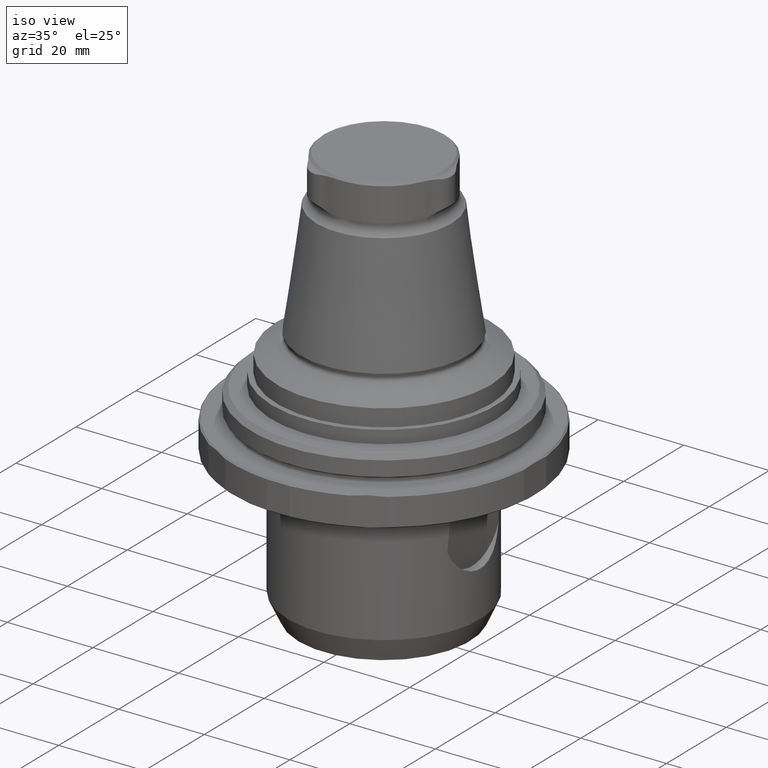
[diagram: clean part render]
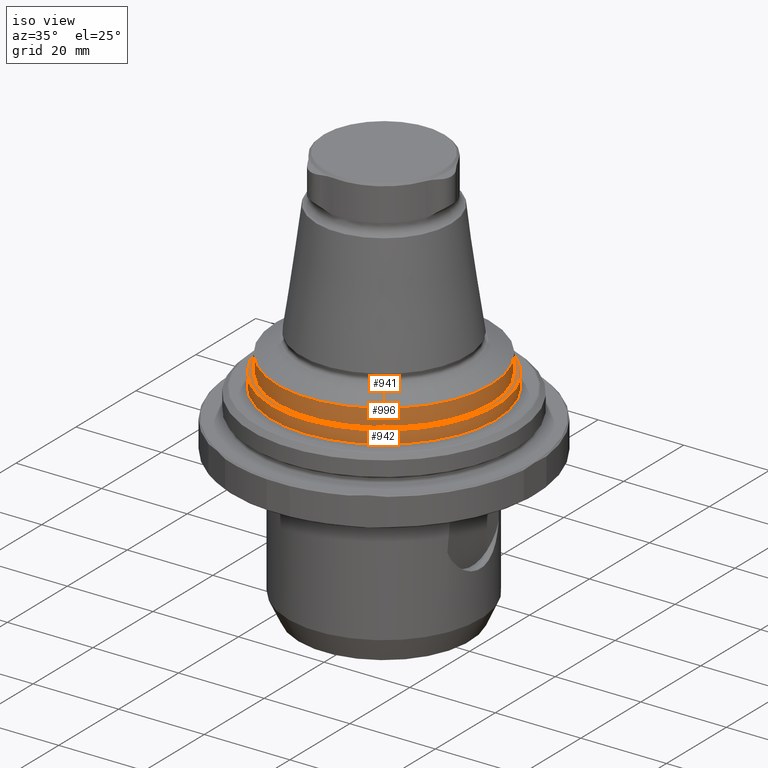
[diagram: same view with one multi-face feature highlighted, each face labeled with its STEP entity id]
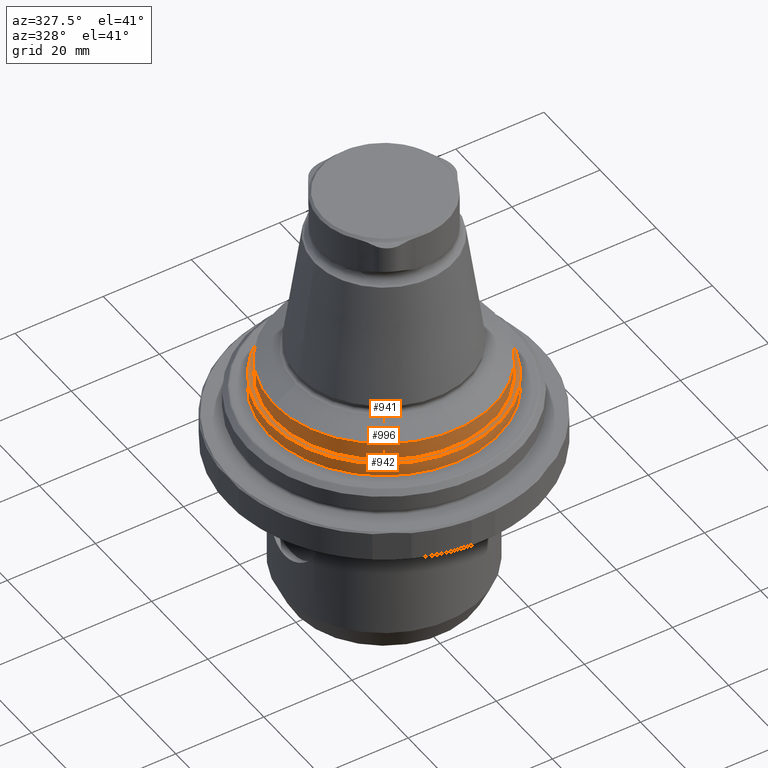
[diagram: same view with one multi-face feature highlighted, each face labeled with its STEP entity id]
A machine part, iso view. The highlighted faces form ONE feature: a stepped (counterbored) hole: 2 coaxial cylindrical walls of radii 25 -> 26.2 mm joined by 1 annular planar shoulder face(s). The faces share edges in the B-rep.
A second angle (auxiliary view) of the same feature is appended — it is thin or edge-on in the first view.
Their STEP definitions:
[1] entity #942 (Cylinder):
#65=CIRCLE('',#1030,26.2);
#67=CIRCLE('',#1033,26.2);
#179=ORIENTED_EDGE('',*,*,#442,.T.);
#180=ORIENTED_EDGE('',*,*,#440,.T.);
#440=EDGE_CURVE('',#573,#573,#65,.T.);
#442=EDGE_CURVE('',#575,#575,#67,.T.);
#573=VERTEX_POINT('',#1495);
#575=VERTEX_POINT('',#1500);
#727=EDGE_LOOP('',(#179));
#728=EDGE_LOOP('',(#180));
#823=FACE_BOUND('',#727,.T.);
#824=FACE_BOUND('',#728,.T.);
#908=CYLINDRICAL_SURFACE('',#1032,26.2);
#942=ADVANCED_FACE('',(#823,#824),#908,.T.);
#1030=AXIS2_PLACEMENT_3D('',#1494,#1173,#1174);
#1032=AXIS2_PLACEMENT_3D('',#1498,#1177,#1178);
#1033=AXIS2_PLACEMENT_3D('',#1499,#1179,#1180);
#1173=DIRECTION('',(-5.5264198129461E-16,6.90472036344684E-17,-1.));
#1174=DIRECTION('',(-1.,9.77164313006873E-16,5.58279830278911E-16));
#1177=DIRECTION('',(-5.5264198129461E-16,7.81688594334958E-18,-1.));
#1178=DIRECTION('',(-1.,9.77164313006873E-16,5.58279830278911E-16));
#1179=DIRECTION('',(5.5264198129461E-16,5.34134317477693E-17,1.));
#1180=DIRECTION('',(1.,-9.77164313006873E-16,-5.58279830278911E-16));
#1494=CARTESIAN_POINT('',(-8.94460880349364E-14,-9.81718178561464E-14,8.50000000000001));
#1495=CARTESIAN_POINT('',(-26.2000000000001,-7.25701128553663E-14,8.50000000000002));
#1498=CARTESIAN_POINT('',(-7.94579659319904E-14,-9.81600925272314E-14,7.00000000000001));
#1499=CARTESIAN_POINT('',(-8.02869289039323E-14,-9.81483671983164E-14,5.50000000000001));
#1500=CARTESIAN_POINT('',(26.1999999999999,-1.23750072199096E-13,5.49999999999999));
[2] entity #996 (Cylinder):
#66=CIRCLE('',#1031,25.);
#111=CIRCLE('',#1130,25.);
#406=ORIENTED_EDGE('',*,*,#554,.T.);
#407=ORIENTED_EDGE('',*,*,#441,.F.);
#441=EDGE_CURVE('',#574,#574,#66,.T.);
#554=EDGE_CURVE('',#653,#653,#111,.T.);
#574=VERTEX_POINT('',#1497);
#653=VERTEX_POINT('',#1878);
#800=EDGE_LOOP('',(#406));
#801=EDGE_LOOP('',(#407));
#896=FACE_BOUND('',#800,.T.);
#897=FACE_BOUND('',#801,.T.);
#931=CYLINDRICAL_SURFACE('',#1131,25.);
#996=ADVANCED_FACE('',(#896,#897),#931,.T.);
#1031=AXIS2_PLACEMENT_3D('',#1496,#1175,#1176);
#1130=AXIS2_PLACEMENT_3D('',#1877,#1401,#1402);
#1131=AXIS2_PLACEMENT_3D('',#1879,#1403,#1404);
#1175=DIRECTION('',(-4.38328612912168E-16,-8.51929322185263E-24,-1.));
#1176=DIRECTION('',(-1.,9.77164313006873E-16,4.38328610599545E-16));
#1401=DIRECTION('',(-4.38328612912168E-16,-8.51929322185263E-24,-1.));
#1402=DIRECTION('',(-1.,9.77164313006873E-16,4.38328610599545E-16));
#1403=DIRECTION('',(-4.38328612912168E-16,-8.51929322185263E-24,-1.));
#1404=DIRECTION('',(-1.,9.77164313006873E-16,4.38328610599545E-16));
#1496=CARTESIAN_POINT('',(-8.40375976101222E-14,-9.81645350959161E-14,8.50000000000001));
#1497=CARTESIAN_POINT('',(-25.0000000000001,-7.37354272707442E-14,8.50000000000002));
#1877=CARTESIAN_POINT('',(-8.2284770010017E-14,-9.81645350618484E-14,12.498889300107));
#1878=CARTESIAN_POINT('',(-25.0000000000001,-7.37354272366765E-14,12.498889300107));
#1879=CARTESIAN_POINT('',(-6.36558039612498E-14,-9.81645346997784E-14,54.998889300107));
[3] entity #941 (Plane):
#43=PLANE('',#1029);
#65=CIRCLE('',#1030,26.2);
#66=CIRCLE('',#1031,25.);
#177=ORIENTED_EDGE('',*,*,#440,.F.);
#178=ORIENTED_EDGE('',*,*,#441,.T.);
#440=EDGE_CURVE('',#573,#573,#65,.T.);
#441=EDGE_CURVE('',#574,#574,#66,.T.);
#573=VERTEX_POINT('',#1495);
#574=VERTEX_POINT('',#1497);
#725=EDGE_LOOP('',(#177));
#726=EDGE_LOOP('',(#178));
#821=FACE_BOUND('',#725,.T.);
#822=FACE_BOUND('',#726,.T.);
#941=ADVANCED_FACE('',(#821,#822),#43,.T.);
#1029=AXIS2_PLACEMENT_3D('',#1493,#1171,#1172);
#1030=AXIS2_PLACEMENT_3D('',#1494,#1173,#1174);
#1031=AXIS2_PLACEMENT_3D('',#1496,#1175,#1176);
#1171=DIRECTION('',(5.5264198129461E-16,-6.90472036344684E-17,1.));
#1172=DIRECTION('',(-3.55103316543315E-16,1.,6.90471738482395E-17));
#1173=DIRECTION('',(-5.5264198129461E-16,6.90472036344684E-17,-1.));
#1174=DIRECTION('',(-1.,9.77164313006873E-16,5.58279830278911E-16));
#1175=DIRECTION('',(-4.38328612912168E-16,-8.51929322185263E-24,-1.));
#1176=DIRECTION('',(-1.,9.77164313006873E-16,4.38328610599545E-16));
#1493=CARTESIAN_POINT('',(-8.40375454974924E-14,-9.81718178561464E-14,8.50000000000001));
#1494=CARTESIAN_POINT('',(-8.94460880349364E-14,-9.81718178561464E-14,8.50000000000001));
#1495=CARTESIAN_POINT('',(-26.2000000000001,-7.25701128553663E-14,8.50000000000002));
#1496=CARTESIAN_POINT('',(-8.40375976101222E-14,-9.81645350959161E-14,8.50000000000001));
#1497=CARTESIAN_POINT('',(-25.0000000000001,-7.37354272707442E-14,8.50000000000002));